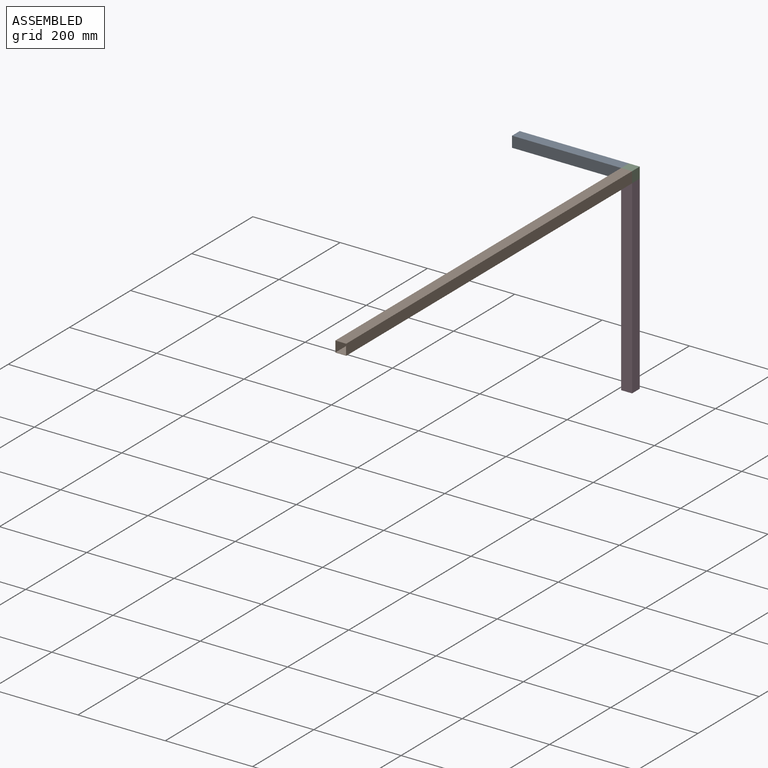
[diagram: assembled view]
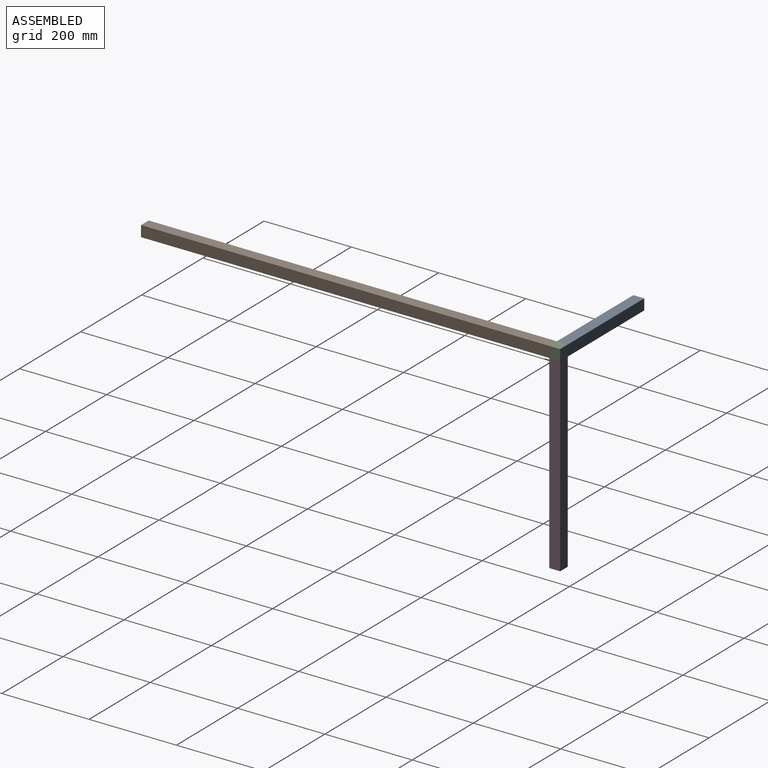
[diagram: assembled view, second angle]
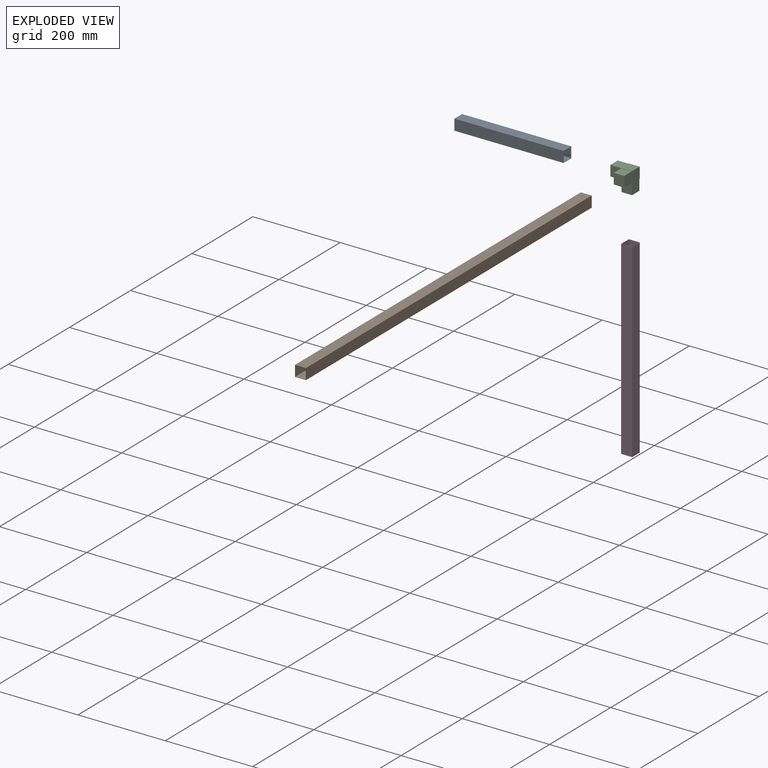
[diagram: exploded view]
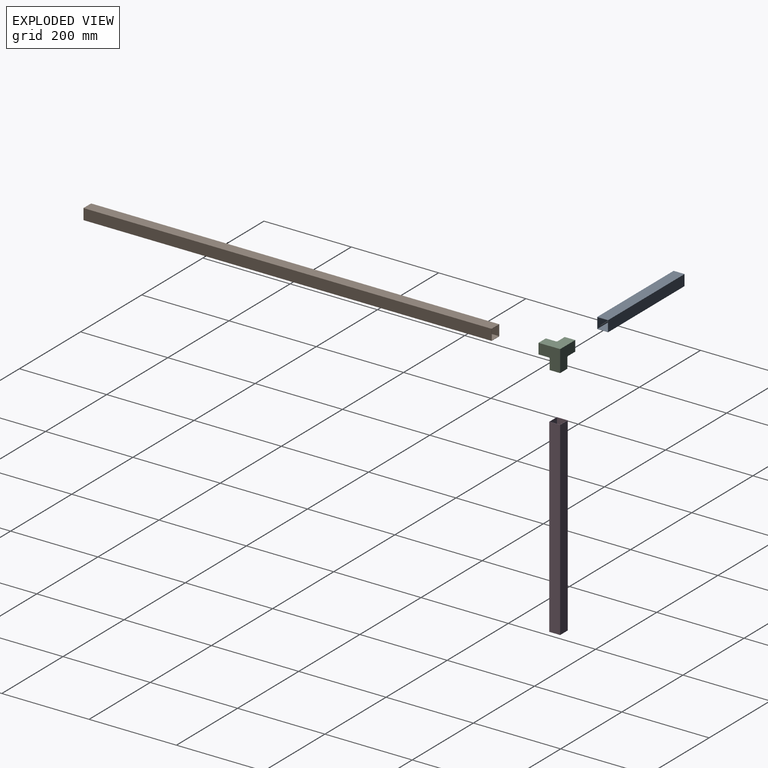
[diagram: exploded view, second angle]
ASSEMBLY  parts=4 mates=3
PART A: 10 faces, bbox 25x25x250 mm
  f0: plane 250x25mm, normal (-1,0,0), area 6250mm2, adj f1,f7,f8,f9
  f1: plane 250x25mm, normal (0,-1,0), area 6250mm2, adj f0,f2,f8,f9
  f2: plane 250x25mm, normal (1,0,0), area 6250mm2, adj f1,f7,f8,f9
  f3: plane 250x24mm, normal (0,1,0), area 6000mm2, adj f4,f6,f8,f9
  f4: plane 250x24mm, normal (1,0,0), area 6000mm2, adj f3,f5,f8,f9
  f5: plane 250x24mm, normal (0,-1,0), area 6000mm2, adj f4,f6,f8,f9
  f6: plane 250x24mm, normal (-1,0,0), area 6000mm2, adj f3,f5,f8,f9
  f7: plane 250x25mm, normal (0,1,0), area 6250mm2, adj f0,f2,f8,f9
  f8: plane 25x25mm, normal (0,0,1), area 49mm2, adj f0,f1,f2,f3,f4,f5,f6,f7
  f9: plane 25x25mm, normal (0,0,-1), area 49mm2, adj f0,f1,f2,f3,f4,f5,f6,f7
PART B: 10 faces, bbox 25x25x935 mm
  f0: plane 935x25mm, normal (-1,0,0), area 23375mm2, adj f1,f7,f8,f9
  f1: plane 935x25mm, normal (0,-1,0), area 23375mm2, adj f0,f2,f8,f9
  f2: plane 935x25mm, normal (1,0,0), area 23375mm2, adj f1,f7,f8,f9
  f3: plane 935x24mm, normal (0,1,0), area 22440mm2, adj f4,f6,f8,f9
  f4: plane 935x24mm, normal (1,0,0), area 22440mm2, adj f3,f5,f8,f9
  f5: plane 935x24mm, normal (0,-1,0), area 22440mm2, adj f4,f6,f8,f9
  f6: plane 935x24mm, normal (-1,0,0), area 22440mm2, adj f3,f5,f8,f9
  f7: plane 935x25mm, normal (0,1,0), area 23375mm2, adj f0,f2,f8,f9
  f8: plane 25x25mm, normal (0,0,1), area 49mm2, adj f0,f1,f2,f3,f4,f5,f6,f7
  f9: plane 25x25mm, normal (0,0,-1), area 49mm2, adj f0,f1,f2,f3,f4,f5,f6,f7
PART C: 21 faces, bbox 50x50x50 mm
  f0: plane 25x25mm, normal (0,-1,0), area 49mm2, adj f1,f2,f3,f5,f11,f12,f13,f14
  f1: plane 25x25mm, normal (-1,0,0), area 49mm2, adj f0,f2,f3,f4,f6,f7,f8,f9
  f2: plane 25x25mm, normal (0,0,1), area 49mm2, adj f0,f1,f4,f5,f16,f17,f18,f19
  f3: plane 25x25mm, normal (0,0,-1), area 625mm2, adj f0,f1,f4,f5
  f4: plane 25x25mm, normal (0,1,0), area 625mm2, adj f1,f2,f3,f5
  f5: plane 25x25mm, normal (1,0,0), area 625mm2, adj f0,f2,f3,f4
  f6: plane 25x24mm, normal (0,0,-1), area 600mm2, adj f1,f7,f9,f10
  f7: plane 25x24mm, normal (0,1,0), area 600mm2, adj f1,f6,f8,f10
  f8: plane 25x24mm, normal (0,0,1), area 600mm2, adj f1,f7,f9,f10
  f9: plane 25x24mm, normal (0,-1,0), area 600mm2, adj f1,f6,f8,f10
  f10: plane 24x24mm, normal (-1,0,0), area 576mm2, adj f6,f7,f8,f9
  f11: plane 25x24mm, normal (0,0,1), area 600mm2, adj f0,f12,f14,f15
  f12: plane 25x24mm, normal (-1,0,0), area 600mm2, adj f0,f11,f13,f15
  f13: plane 25x24mm, normal (0,0,-1), area 600mm2, adj f0,f12,f14,f15
  f14: plane 25x24mm, normal (1,0,0), area 600mm2, adj f0,f11,f13,f15
  f15: plane 24x24mm, normal (0,-1,0), area 576mm2, adj f11,f12,f13,f14
  f16: plane 25x24mm, normal (-1,0,0), area 600mm2, adj f2,f17,f19,f20
  f17: plane 25x24mm, normal (0,-1,0), area 600mm2, adj f2,f16,f18,f20
  f18: plane 25x24mm, normal (1,0,0), area 600mm2, adj f2,f17,f19,f20
  f19: plane 25x24mm, normal (0,1,0), area 600mm2, adj f2,f16,f18,f20
  f20: plane 24x24mm, normal (0,0,1), area 576mm2, adj f16,f17,f18,f19
PART D: 10 faces, bbox 25x25x435 mm
  f0: plane 435x25mm, normal (-1,0,0), area 10875mm2, adj f1,f7,f8,f9
  f1: plane 435x25mm, normal (0,-1,0), area 10875mm2, adj f0,f2,f8,f9
  f2: plane 435x25mm, normal (1,0,0), area 10875mm2, adj f1,f7,f8,f9
  f3: plane 435x24mm, normal (0,1,0), area 10440mm2, adj f4,f6,f8,f9
  f4: plane 435x24mm, normal (1,0,0), area 10440mm2, adj f3,f5,f8,f9
  f5: plane 435x24mm, normal (0,-1,0), area 10440mm2, adj f4,f6,f8,f9
  f6: plane 435x24mm, normal (-1,0,0), area 10440mm2, adj f3,f5,f8,f9
  f7: plane 435x25mm, normal (0,1,0), area 10875mm2, adj f0,f2,f8,f9
  f8: plane 25x25mm, normal (0,0,1), area 49mm2, adj f0,f1,f2,f3,f4,f5,f6,f7
  f9: plane 25x25mm, normal (0,0,-1), area 49mm2, adj f0,f1,f2,f3,f4,f5,f6,f7
PLACE A rot(axis=(0.71,0,0.71),180deg) t=(-459.41,504.75,-214.94)mm
PLACE B rot(axis=(1,0,0),90deg) t=(-209.41,504.75,-189.94)mm
PLACE C rot(axis=(0,-1,0),90deg) t=(-184.41,504.75,-214.94)mm
PLACE D t=(-209.41,529.75,-649.94)mm
MATE fastened C.f1 <-> D.f8  axis (0,0,-1) through (-196.91,517.25,-214.94)mm
MATE fastened B.f9 <-> C.f0  axis (0,1,0) through (-196.91,504.75,-202.44)mm
MATE fastened A.f8 <-> C.f2  axis (1,0,0) through (-209.41,517.25,-202.44)mm
